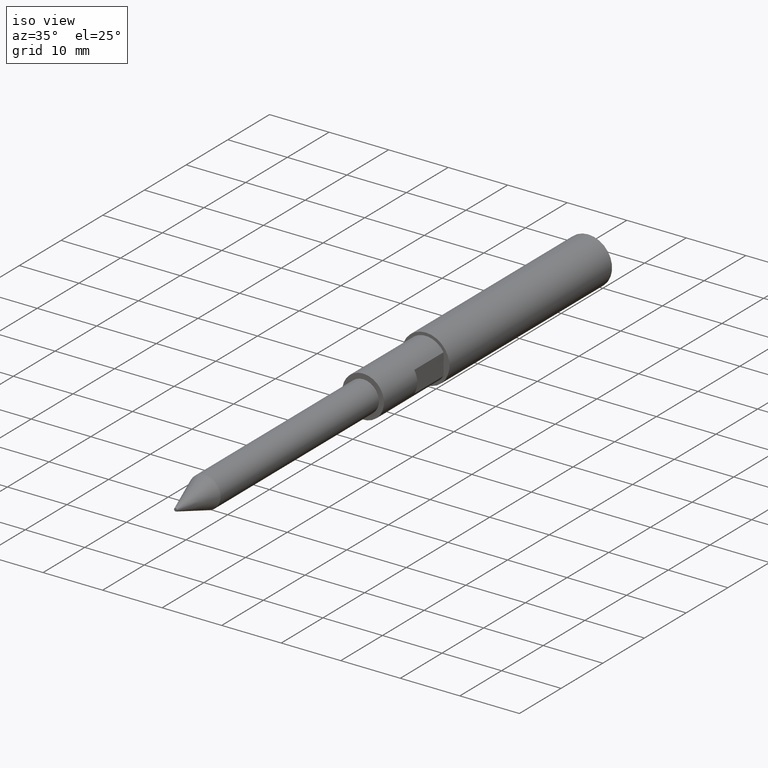
[diagram: clean part render]
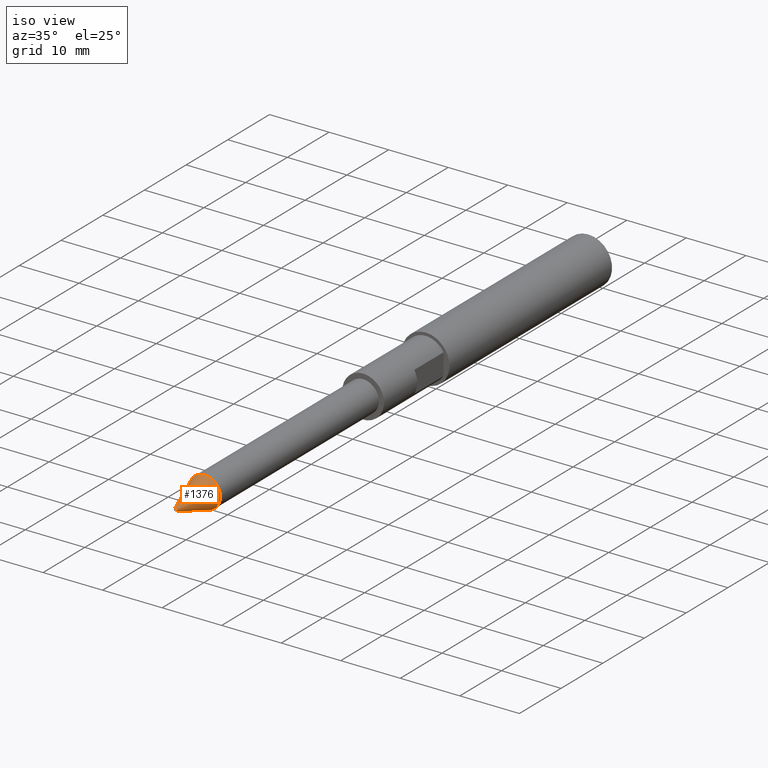
[diagram: same view with one face highlighted and labeled with its STEP entity id]
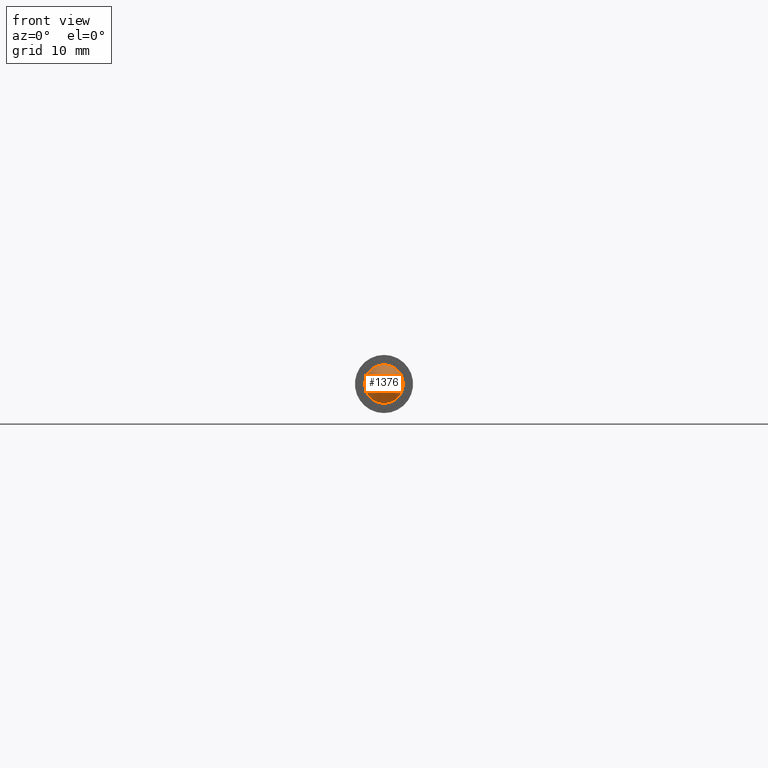
[diagram: same view with one face highlighted and labeled with its STEP entity id]
A machine part, iso view. The second image highlights one B-rep face of the part: STEP entity #1376.
A second angle (front view) of the same face is appended — the face is thin or edge-on in the first view.
In plain terms, the highlighted conical surface has half-angle 18.925 deg.
Its self-contained STEP definition (entity closure, byte-faithful):
#261 = CARTESIAN_POINT ( 'NONE',  ( 5.817072295949929800E-015, -52.50000000000000000, 0.0000000000000000000 ) ) ;
#380 = ORIENTED_EDGE ( 'NONE', *, *, #3081, .T. ) ;
#1093 = FACE_BOUND ( 'NONE', #3956, .T. ) ;
#1376 = ADVANCED_FACE ( 'NONE', ( #8057, #1093 ), #2573, .T. ) ;
#1406 = ORIENTED_EDGE ( 'NONE', *, *, #1605, .F. ) ;
#1605 = EDGE_CURVE ( 'NONE', #14912, #14912, #13943, .T. ) ;
#2043 = CIRCLE ( 'NONE', #14011, 0.2500000000000000000 ) ;
#2573 = CONICAL_SURFACE ( 'NONE', #15122, 0.2500000000000000000, 0.3302973548292536500 ) ;
#2579 = CARTESIAN_POINT ( 'NONE',  ( 5.817072295949929800E-015, -52.50000000000000000, 0.0000000000000000000 ) ) ;
#2706 = CARTESIAN_POINT ( 'NONE',  ( -2.649999999999994600, -45.50000000000000000, 0.0000000000000000000 ) ) ;
#3081 = EDGE_CURVE ( 'NONE', #7358, #7358, #2043, .T. ) ;
#3121 = AXIS2_PLACEMENT_3D ( 'NONE', #10497, #8319, #4673 ) ;
#3956 = EDGE_LOOP ( 'NONE', ( #380 ) ) ;
#4673 = DIRECTION ( 'NONE',  ( -1.000000000000000000, 0.0000000000000000000, 0.0000000000000000000 ) ) ;
#5989 = EDGE_LOOP ( 'NONE', ( #1406 ) ) ;
#7206 = DIRECTION ( 'NONE',  ( -1.196309205990161700E-016, 1.000000000000000000, -0.0000000000000000000 ) ) ;
#7358 = VERTEX_POINT ( 'NONE', #7755 ) ;
#7755 = CARTESIAN_POINT ( 'NONE',  ( -0.2499999999999942000, -52.50000000000000000, 0.0000000000000000000 ) ) ;
#8057 = FACE_OUTER_BOUND ( 'NONE', #5989, .T. ) ;
#8319 = DIRECTION ( 'NONE',  ( -1.196309205990161700E-016, 1.000000000000000000, -0.0000000000000000000 ) ) ;
#9728 = DIRECTION ( 'NONE',  ( -1.000000000000000000, 0.0000000000000000000, 0.0000000000000000000 ) ) ;
#10497 = CARTESIAN_POINT ( 'NONE',  ( 4.979655851756816200E-015, -45.50000000000000000, 0.0000000000000000000 ) ) ;
#11933 = DIRECTION ( 'NONE',  ( -1.000000000000000000, 0.0000000000000000000, 0.0000000000000000000 ) ) ;
#11996 = DIRECTION ( 'NONE',  ( -1.196309205990161700E-016, 1.000000000000000000, -0.0000000000000000000 ) ) ;
#13943 = CIRCLE ( 'NONE', #3121, 2.649999999999999000 ) ;
#14011 = AXIS2_PLACEMENT_3D ( 'NONE', #2579, #11996, #9728 ) ;
#14912 = VERTEX_POINT ( 'NONE', #2706 ) ;
#15122 = AXIS2_PLACEMENT_3D ( 'NONE', #261, #7206, #11933 ) ;